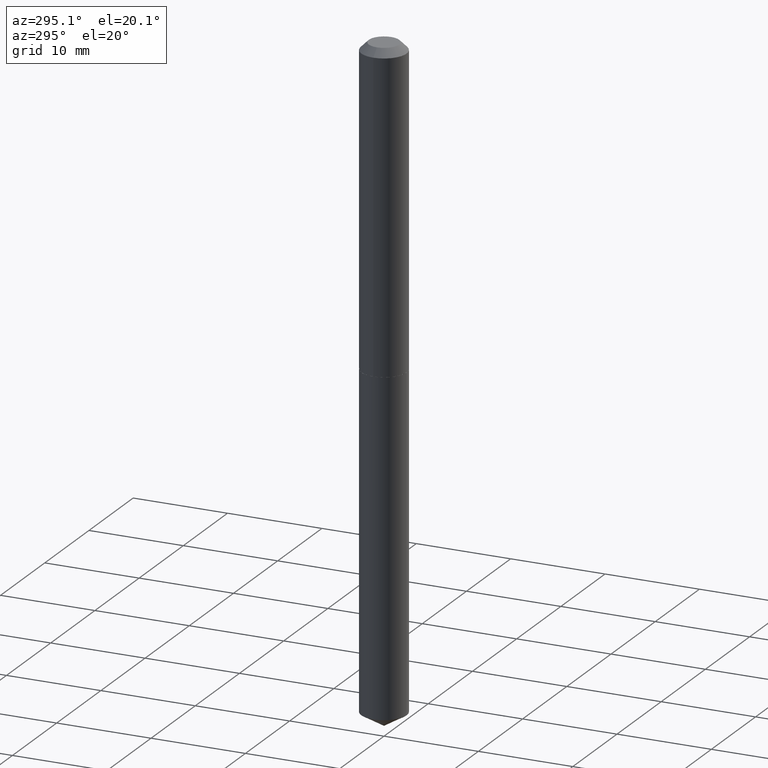
[diagram: clean part render]
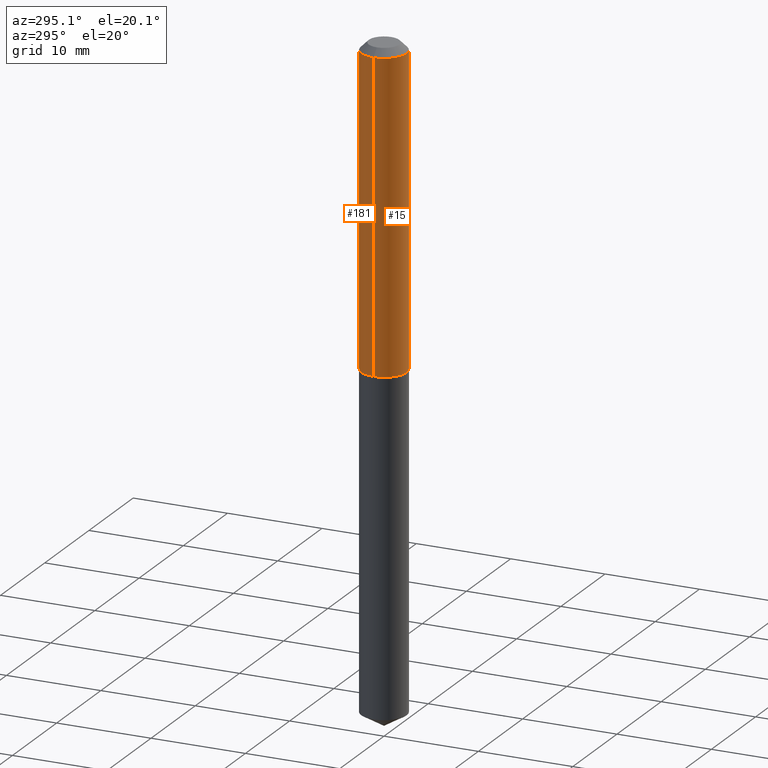
[diagram: same view with one multi-face feature highlighted, each face labeled with its STEP entity id]
A machine part, auxiliary view. The highlighted faces form ONE feature: a constant-radius fillet chain: 2 tangent blend faces with common blend radius 2.4003 mm. The faces share edges in the B-rep.
Their STEP definitions:
[1] entity #181 (Cylinder):
#2 = VERTEX_POINT ( 'NONE', #276 ) ;
#14 = CARTESIAN_POINT ( 'NONE',  ( 0.09450000000000008393, -6.598899730413527051E-16, 4.607987053127163164E-30 ) ) ;
#26 = VERTEX_POINT ( 'NONE', #187 ) ;
#35 = AXIS2_PLACEMENT_3D ( 'NONE', #98, #313, #40 ) ;
#40 = DIRECTION ( 'NONE',  ( 1.000000000000000000, -6.982962677686265922E-15, 0.000000000000000000 ) ) ;
#56 = CARTESIAN_POINT ( 'NONE',  ( -0.09450000000000008393, 6.714628852932952720E-16, -4.648393660290889834E-30 ) ) ;
#72 = DIRECTION ( 'NONE',  ( -2.445468806185136597E-29, 3.491481338843145583E-15, 1.000000000000000000 ) ) ;
#98 = CARTESIAN_POINT ( 'NONE',  ( 3.212123276924177386E-29, -4.586060738570472102E-15, -1.313500000000000112 ) ) ;
#99 = DIRECTION ( 'NONE',  ( -2.445468806185136877E-29, 3.491481338843145188E-15, 1.000000000000000000 ) ) ;
#116 = FACE_OUTER_BOUND ( 'NONE', #239, .T. ) ;
#149 = EDGE_CURVE ( 'NONE', #206, #179, #331, .T. ) ;
#164 = VECTOR ( 'NONE', #99, 39.37007874015748143 ) ;
#167 = ORIENTED_EDGE ( 'NONE', *, *, #218, .T. ) ;
#169 = ORIENTED_EDGE ( 'NONE', *, *, #149, .T. ) ;
#170 = VECTOR ( 'NONE', #244, 39.37007874015748143 ) ;
#174 = CARTESIAN_POINT ( 'NONE',  ( -0.09449999999999998679, -1.676121879911364540E-15, -0.03125000000000019429 ) ) ;
#179 = VERTEX_POINT ( 'NONE', #174 ) ;
#181 = ADVANCED_FACE ( 'NONE', ( #116 ), #212, .T. ) ;
#187 = CARTESIAN_POINT ( 'NONE',  ( 0.09450000000000013944, -5.245950711611824906E-15, -1.313500000000000112 ) ) ;
#190 = CIRCLE ( 'NONE', #35, 0.09450000000000013944 ) ;
#201 = ORIENTED_EDGE ( 'NONE', *, *, #362, .F. ) ;
#206 = VERTEX_POINT ( 'NONE', #279 ) ;
#212 = CYLINDRICAL_SURFACE ( 'NONE', #365, 0.09450000000000008393 ) ;
#218 = EDGE_CURVE ( 'NONE', #26, #206, #190, .T. ) ;
#219 = CARTESIAN_POINT ( 'NONE',  ( 0.000000000000000000, 0.000000000000000000, 0.000000000000000000 ) ) ;
#239 = EDGE_LOOP ( 'NONE', ( #167, #169, #360, #201 ) ) ;
#243 = EDGE_CURVE ( 'NONE', #2, #179, #255, .T. ) ;
#244 = DIRECTION ( 'NONE',  ( -2.445468806185136877E-29, 3.491481338843145188E-15, 1.000000000000000000 ) ) ;
#253 = DIRECTION ( 'NONE',  ( -2.445468806185136597E-29, 3.491481338843145583E-15, 1.000000000000000000 ) ) ;
#255 = CIRCLE ( 'NONE', #321, 0.09449999999999998679 ) ;
#276 = CARTESIAN_POINT ( 'NONE',  ( 0.09449999999999998679, -7.689987648802011155E-16, -0.03125000000000019429 ) ) ;
#279 = CARTESIAN_POINT ( 'NONE',  ( -0.09450000000000013944, -3.914597853277176436E-15, -1.313500000000000112 ) ) ;
#285 = LINE ( 'NONE', #14, #164 ) ;
#313 = DIRECTION ( 'NONE',  ( -2.445468806185136597E-29, 3.491481338843145583E-15, 1.000000000000000000 ) ) ;
#319 = DIRECTION ( 'NONE',  ( 1.000000000000000000, -6.982962677686266711E-15, 0.000000000000000000 ) ) ;
#321 = AXIS2_PLACEMENT_3D ( 'NONE', #350, #72, #319 ) ;
#331 = LINE ( 'NONE', #56, #170 ) ;
#350 = CARTESIAN_POINT ( 'NONE',  ( 7.642090019328598283E-31, -1.091087918388489651E-16, -0.03125000000000019429 ) ) ;
#360 = ORIENTED_EDGE ( 'NONE', *, *, #243, .F. ) ;
#362 = EDGE_CURVE ( 'NONE', #26, #2, #285, .T. ) ;
#365 = AXIS2_PLACEMENT_3D ( 'NONE', #219, #253, #377 ) ;
#377 = DIRECTION ( 'NONE',  ( 1.000000000000000000, -6.982962677686265922E-15, 4.876176775795935793E-29 ) ) ;
[2] entity #15 (Cylinder):
#2 = VERTEX_POINT ( 'NONE', #276 ) ;
#9 = DIRECTION ( 'NONE',  ( -2.445468806185136597E-29, 3.491481338843145583E-15, 1.000000000000000000 ) ) ;
#14 = CARTESIAN_POINT ( 'NONE',  ( 0.09450000000000008393, -6.598899730413527051E-16, 4.607987053127163164E-30 ) ) ;
#15 = ADVANCED_FACE ( 'NONE', ( #94 ), #84, .T. ) ;
#26 = VERTEX_POINT ( 'NONE', #187 ) ;
#30 = CARTESIAN_POINT ( 'NONE',  ( 0.000000000000000000, 0.000000000000000000, 0.000000000000000000 ) ) ;
#44 = CIRCLE ( 'NONE', #268, 0.09449999999999998679 ) ;
#56 = CARTESIAN_POINT ( 'NONE',  ( -0.09450000000000008393, 6.714628852932952720E-16, -4.648393660290889834E-30 ) ) ;
#63 = CARTESIAN_POINT ( 'NONE',  ( 7.642090019328598283E-31, -1.091087918388489651E-16, -0.03125000000000019429 ) ) ;
#64 = DIRECTION ( 'NONE',  ( 1.000000000000000000, -6.982962677686265922E-15, 0.000000000000000000 ) ) ;
#75 = ORIENTED_EDGE ( 'NONE', *, *, #139, .T. ) ;
#84 = CYLINDRICAL_SURFACE ( 'NONE', #240, 0.09450000000000008393 ) ;
#94 = FACE_OUTER_BOUND ( 'NONE', #298, .T. ) ;
#99 = DIRECTION ( 'NONE',  ( -2.445468806185136877E-29, 3.491481338843145188E-15, 1.000000000000000000 ) ) ;
#115 = CARTESIAN_POINT ( 'NONE',  ( 3.212123276924177386E-29, -4.586060738570472102E-15, -1.313500000000000112 ) ) ;
#124 = DIRECTION ( 'NONE',  ( 1.000000000000000000, -6.982962677686266711E-15, 0.000000000000000000 ) ) ;
#126 = DIRECTION ( 'NONE',  ( -2.445468806185136597E-29, 3.491481338843145583E-15, 1.000000000000000000 ) ) ;
#139 = EDGE_CURVE ( 'NONE', #206, #26, #198, .T. ) ;
#149 = EDGE_CURVE ( 'NONE', #206, #179, #331, .T. ) ;
#164 = VECTOR ( 'NONE', #99, 39.37007874015748143 ) ;
#170 = VECTOR ( 'NONE', #244, 39.37007874015748143 ) ;
#173 = ORIENTED_EDGE ( 'NONE', *, *, #149, .F. ) ;
#174 = CARTESIAN_POINT ( 'NONE',  ( -0.09449999999999998679, -1.676121879911364540E-15, -0.03125000000000019429 ) ) ;
#175 = ORIENTED_EDGE ( 'NONE', *, *, #326, .F. ) ;
#178 = ORIENTED_EDGE ( 'NONE', *, *, #362, .T. ) ;
#179 = VERTEX_POINT ( 'NONE', #174 ) ;
#187 = CARTESIAN_POINT ( 'NONE',  ( 0.09450000000000013944, -5.245950711611824906E-15, -1.313500000000000112 ) ) ;
#198 = CIRCLE ( 'NONE', #315, 0.09450000000000013944 ) ;
#206 = VERTEX_POINT ( 'NONE', #279 ) ;
#240 = AXIS2_PLACEMENT_3D ( 'NONE', #30, #126, #361 ) ;
#244 = DIRECTION ( 'NONE',  ( -2.445468806185136877E-29, 3.491481338843145188E-15, 1.000000000000000000 ) ) ;
#268 = AXIS2_PLACEMENT_3D ( 'NONE', #63, #9, #124 ) ;
#276 = CARTESIAN_POINT ( 'NONE',  ( 0.09449999999999998679, -7.689987648802011155E-16, -0.03125000000000019429 ) ) ;
#279 = CARTESIAN_POINT ( 'NONE',  ( -0.09450000000000013944, -3.914597853277176436E-15, -1.313500000000000112 ) ) ;
#280 = DIRECTION ( 'NONE',  ( -2.445468806185136597E-29, 3.491481338843145583E-15, 1.000000000000000000 ) ) ;
#285 = LINE ( 'NONE', #14, #164 ) ;
#298 = EDGE_LOOP ( 'NONE', ( #173, #75, #178, #175 ) ) ;
#315 = AXIS2_PLACEMENT_3D ( 'NONE', #115, #280, #64 ) ;
#326 = EDGE_CURVE ( 'NONE', #179, #2, #44, .T. ) ;
#331 = LINE ( 'NONE', #56, #170 ) ;
#361 = DIRECTION ( 'NONE',  ( 1.000000000000000000, -6.982962677686265922E-15, 4.876176775795935793E-29 ) ) ;
#362 = EDGE_CURVE ( 'NONE', #26, #2, #285, .T. ) ;